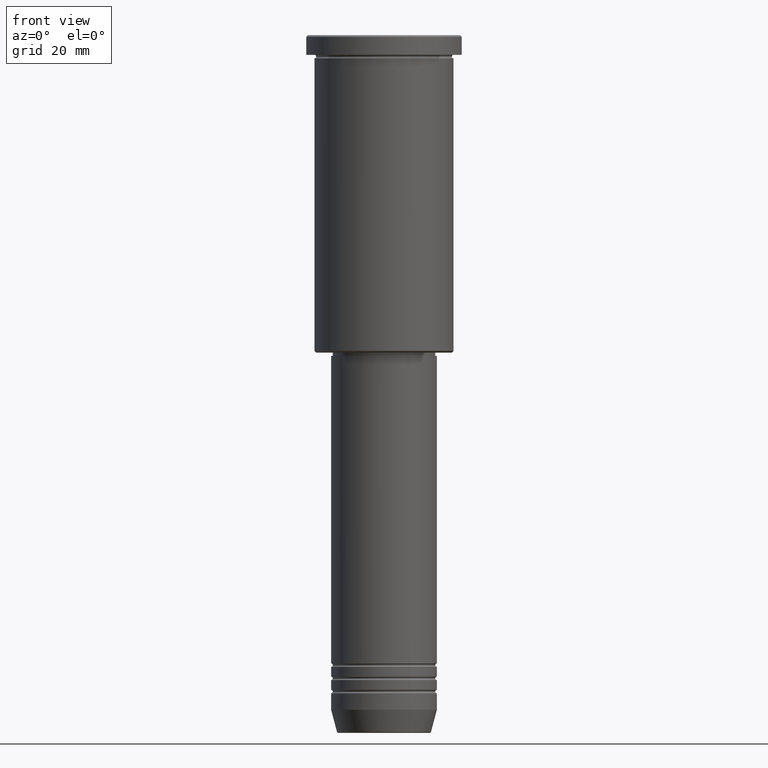
[diagram: clean part render]
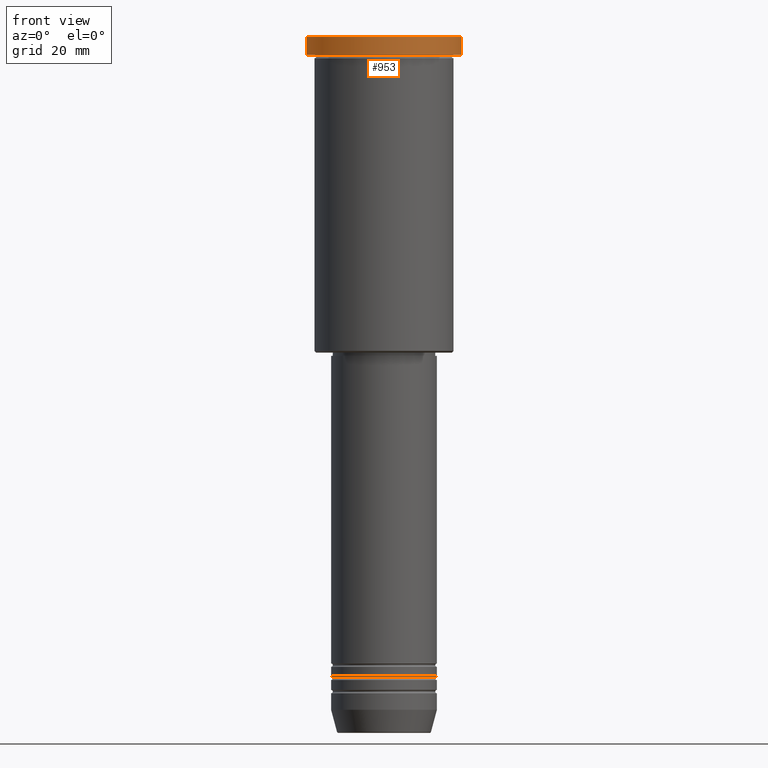
[diagram: same view with one face highlighted and labeled with its STEP entity id]
A machine part, front view. The second image highlights one B-rep face of the part: STEP entity #953.
In plain terms, the highlighted cylindrical surface (partial cylindrical patch) has radius 23.5 mm, axis along (-0, -0, 1).
Its self-contained STEP definition (entity closure, byte-faithful):
#29 = DIRECTION ( 'NONE',  ( -0.000000000000000000, -0.000000000000000000, 1.000000000000000000 ) ) ;
#36 = CYLINDRICAL_SURFACE ( 'NONE', #789, 23.50000000000000000 ) ;
#46 = VECTOR ( 'NONE', #776, 1000.000000000000000 ) ;
#58 = EDGE_CURVE ( 'NONE', #764, #1139, #766, .T. ) ;
#61 = LINE ( 'NONE', #971, #46 ) ;
#97 = VECTOR ( 'NONE', #29, 1000.000000000000000 ) ;
#98 = DIRECTION ( 'NONE',  ( -0.000000000000000000, -0.000000000000000000, 1.000000000000000000 ) ) ;
#218 = EDGE_CURVE ( 'NONE', #681, #544, #1169, .T. ) ;
#229 = ORIENTED_EDGE ( 'NONE', *, *, #353, .F. ) ;
#274 = DIRECTION ( 'NONE',  ( 1.000000000000000000, 0.000000000000000000, 0.000000000000000000 ) ) ;
#326 = DIRECTION ( 'NONE',  ( 1.000000000000000000, 0.000000000000000000, 0.000000000000000000 ) ) ;
#353 = EDGE_CURVE ( 'NONE', #681, #1139, #1029, .T. ) ;
#373 = CARTESIAN_POINT ( 'NONE',  ( 0.000000000000000000, 0.000000000000000000, -0.5000000000000004441 ) ) ;
#401 = CARTESIAN_POINT ( 'NONE',  ( 23.50000000000000000, 0.000000000000000000, -5.999999999999993783 ) ) ;
#544 = VERTEX_POINT ( 'NONE', #401 ) ;
#556 = FACE_OUTER_BOUND ( 'NONE', #1176, .T. ) ;
#596 = AXIS2_PLACEMENT_3D ( 'NONE', #373, #732, #326 ) ;
#612 = CARTESIAN_POINT ( 'NONE',  ( -23.50000000000000000, 2.877919977996280320E-15, -5.999999999999993783 ) ) ;
#681 = VERTEX_POINT ( 'NONE', #612 ) ;
#689 = EDGE_CURVE ( 'NONE', #544, #764, #61, .T. ) ;
#732 = DIRECTION ( 'NONE',  ( 0.000000000000000000, 0.000000000000000000, -1.000000000000000000 ) ) ;
#758 = DIRECTION ( 'NONE',  ( 1.000000000000000000, 0.000000000000000000, 0.000000000000000000 ) ) ;
#764 = VERTEX_POINT ( 'NONE', #907 ) ;
#766 = CIRCLE ( 'NONE', #596, 23.50000000000000000 ) ;
#776 = DIRECTION ( 'NONE',  ( -0.000000000000000000, -0.000000000000000000, 1.000000000000000000 ) ) ;
#789 = AXIS2_PLACEMENT_3D ( 'NONE', #917, #98, #758 ) ;
#842 = CARTESIAN_POINT ( 'NONE',  ( -23.50000000000000000, 2.877919977996280320E-15, 0.000000000000000000 ) ) ;
#907 = CARTESIAN_POINT ( 'NONE',  ( 23.50000000000000000, 0.000000000000000000, -0.5000000000000004441 ) ) ;
#914 = CARTESIAN_POINT ( 'NONE',  ( 0.000000000000000000, 0.000000000000000000, -5.999999999999993783 ) ) ;
#917 = CARTESIAN_POINT ( 'NONE',  ( 0.000000000000000000, 0.000000000000000000, 0.000000000000000000 ) ) ;
#953 = ADVANCED_FACE ( 'NONE', ( #556 ), #36, .T. ) ;
#971 = CARTESIAN_POINT ( 'NONE',  ( 23.50000000000000000, 0.000000000000000000, 0.000000000000000000 ) ) ;
#974 = DIRECTION ( 'NONE',  ( -0.000000000000000000, -0.000000000000000000, 1.000000000000000000 ) ) ;
#1029 = LINE ( 'NONE', #842, #97 ) ;
#1090 = ORIENTED_EDGE ( 'NONE', *, *, #689, .T. ) ;
#1113 = AXIS2_PLACEMENT_3D ( 'NONE', #914, #974, #274 ) ;
#1121 = ORIENTED_EDGE ( 'NONE', *, *, #58, .T. ) ;
#1138 = CARTESIAN_POINT ( 'NONE',  ( -23.50000000000000000, 2.877919977996280320E-15, -0.5000000000000004441 ) ) ;
#1139 = VERTEX_POINT ( 'NONE', #1138 ) ;
#1169 = CIRCLE ( 'NONE', #1113, 23.50000000000000000 ) ;
#1176 = EDGE_LOOP ( 'NONE', ( #229, #1179, #1090, #1121 ) ) ;
#1179 = ORIENTED_EDGE ( 'NONE', *, *, #218, .T. ) ;